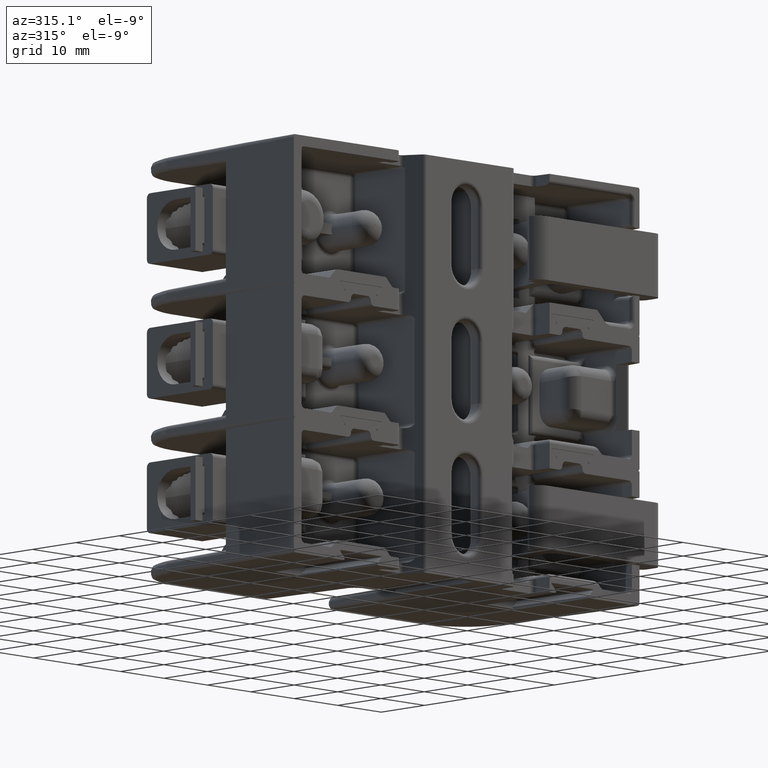
[diagram: clean part render]
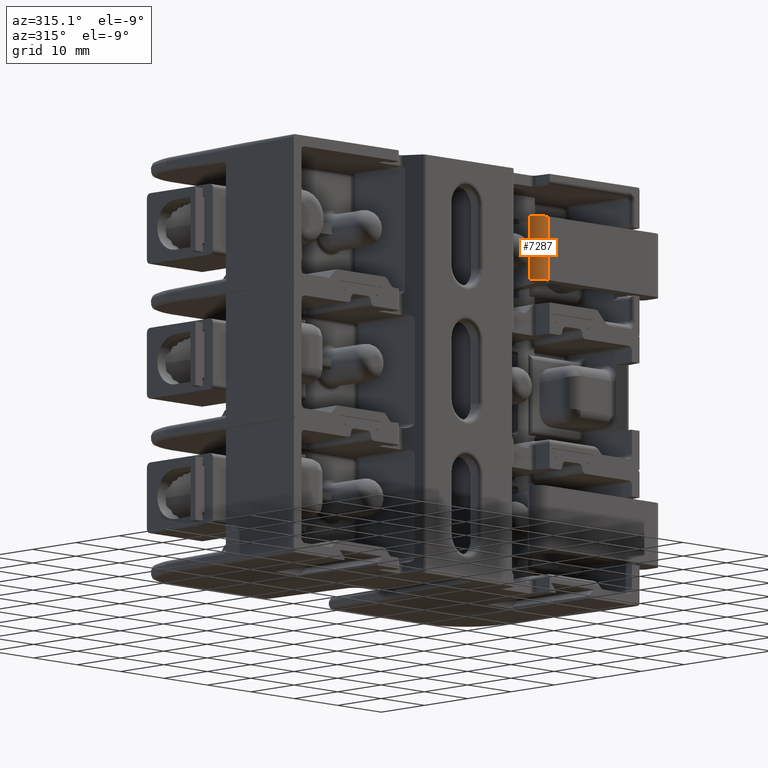
[diagram: same view with one face highlighted and labeled with its STEP entity id]
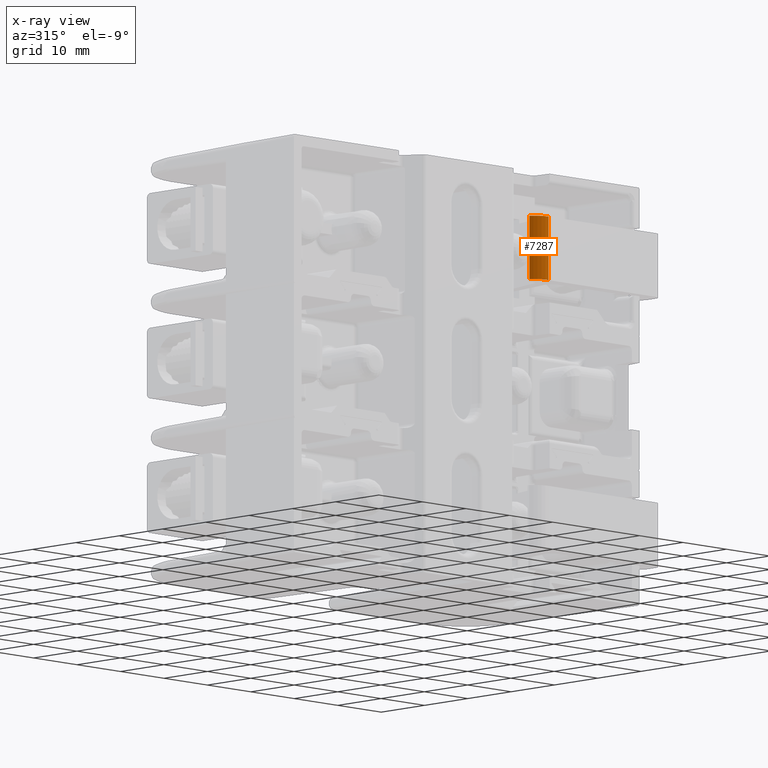
[diagram: x-ray of the same camera — body ghosted, the highlighted face saturated]
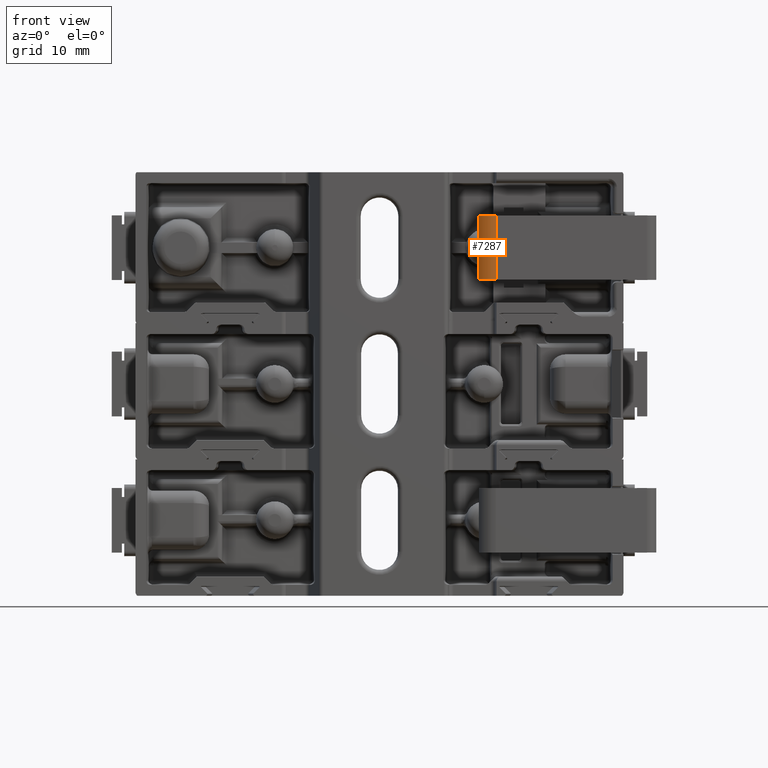
[diagram: same view with one face highlighted and labeled with its STEP entity id]
A machine part, auxiliary view. The second image highlights one B-rep face of the part: STEP entity #7287.
The next image is the same camera in x-ray: the body ghosted, the highlighted face saturated — about 0% of this face is hidden behind the body in this view.
A second angle (front view) of the same face is appended — the face is thin or edge-on in the first view.
In plain terms, the highlighted cylindrical surface (edge-blend (fillet) strip) has radius 3.175 mm, axis along (-0, -0, -1).
Its self-contained STEP definition (entity closure, byte-faithful):
#2938 = ORIENTED_EDGE ( 'NONE', *, *, #70102, .F. ) ;
#6811 = VERTEX_POINT ( 'NONE', #51435 ) ;
#7287 = ADVANCED_FACE ( 'NONE', ( #74385 ), #30116, .T. ) ;
#10674 = EDGE_CURVE ( 'NONE', #6811, #91145, #19597, .T. ) ;
#16606 = AXIS2_PLACEMENT_3D ( 'NONE', #117296, #49402, #128589 ) ;
#18575 = EDGE_CURVE ( 'NONE', #45719, #117542, #37878, .T. ) ;
#19597 = LINE ( 'NONE', #39164, #106404 ) ;
#30116 = CYLINDRICAL_SURFACE ( 'NONE', #90352, 0.1250000000000000300 ) ;
#30357 = CARTESIAN_POINT ( 'NONE',  ( 0.7471585609973069300, 0.005999999999999798900, -0.2065000000000001000 ) ) ;
#31969 = CARTESIAN_POINT ( 'NONE',  ( 0.6375000000000004000, 0.07099999999999978600, -0.2065000000000001000 ) ) ;
#37878 = LINE ( 'NONE', #129627, #98096 ) ;
#38602 = ORIENTED_EDGE ( 'NONE', *, *, #97548, .T. ) ;
#39164 = CARTESIAN_POINT ( 'NONE',  ( 0.6375000000000004000, 0.07099999999999978600, 0.2065000000000001000 ) ) ;
#39979 = DIRECTION ( 'NONE',  ( 0.0000000000000000000, -0.0000000000000000000, -1.000000000000000000 ) ) ;
#40611 = CIRCLE ( 'NONE', #114521, 0.1250000000000000300 ) ;
#45719 = VERTEX_POINT ( 'NONE', #135085 ) ;
#49402 = DIRECTION ( 'NONE',  ( 0.0000000000000000000, -0.0000000000000000000, -1.000000000000000000 ) ) ;
#51435 = CARTESIAN_POINT ( 'NONE',  ( 0.6375000000000004000, 0.07099999999999978600, 0.2065000000000001000 ) ) ;
#68344 = CIRCLE ( 'NONE', #16606, 0.1250000000000000300 ) ;
#70102 = EDGE_CURVE ( 'NONE', #117542, #91145, #40611, .T. ) ;
#72701 = DIRECTION ( 'NONE',  ( -0.0000000000000000000, -0.0000000000000000000, -1.000000000000000000 ) ) ;
#74385 = FACE_OUTER_BOUND ( 'NONE', #123699, .T. ) ;
#90352 = AXIS2_PLACEMENT_3D ( 'NONE', #126594, #103894, #115823 ) ;
#91145 = VERTEX_POINT ( 'NONE', #31969 ) ;
#94615 = ORIENTED_EDGE ( 'NONE', *, *, #10674, .T. ) ;
#97548 = EDGE_CURVE ( 'NONE', #45719, #6811, #68344, .T. ) ;
#98096 = VECTOR ( 'NONE', #72701, 39.37007874015748100 ) ;
#103894 = DIRECTION ( 'NONE',  ( -0.0000000000000000000, -0.0000000000000000000, -1.000000000000000000 ) ) ;
#106404 = VECTOR ( 'NONE', #129717, 39.37007874015748100 ) ;
#107853 = CARTESIAN_POINT ( 'NONE',  ( 0.7471585609973069300, 0.1309999999999997800, -0.2065000000000001000 ) ) ;
#111915 = ORIENTED_EDGE ( 'NONE', *, *, #18575, .F. ) ;
#114521 = AXIS2_PLACEMENT_3D ( 'NONE', #107853, #39979, #119207 ) ;
#115823 = DIRECTION ( 'NONE',  ( -1.000000000000000000, 0.0000000000000000000, 0.0000000000000000000 ) ) ;
#117296 = CARTESIAN_POINT ( 'NONE',  ( 0.7471585609973069300, 0.1309999999999997800, 0.2065000000000001000 ) ) ;
#117542 = VERTEX_POINT ( 'NONE', #30357 ) ;
#119207 = DIRECTION ( 'NONE',  ( 1.000000000000000000, -9.561467977824918300E-016, 0.0000000000000000000 ) ) ;
#123699 = EDGE_LOOP ( 'NONE', ( #2938, #111915, #38602, #94615 ) ) ;
#126594 = CARTESIAN_POINT ( 'NONE',  ( 0.7471585609973069300, 0.1309999999999997800, 0.2065000000000001000 ) ) ;
#128589 = DIRECTION ( 'NONE',  ( 1.000000000000000000, -9.561467977824918300E-016, 0.0000000000000000000 ) ) ;
#129627 = CARTESIAN_POINT ( 'NONE',  ( 0.7471585609973069300, 0.005999999999999798900, 0.2065000000000001000 ) ) ;
#129717 = DIRECTION ( 'NONE',  ( -0.0000000000000000000, -0.0000000000000000000, -1.000000000000000000 ) ) ;
#135085 = CARTESIAN_POINT ( 'NONE',  ( 0.7471585609973069300, 0.005999999999999798900, 0.2065000000000001000 ) ) ;